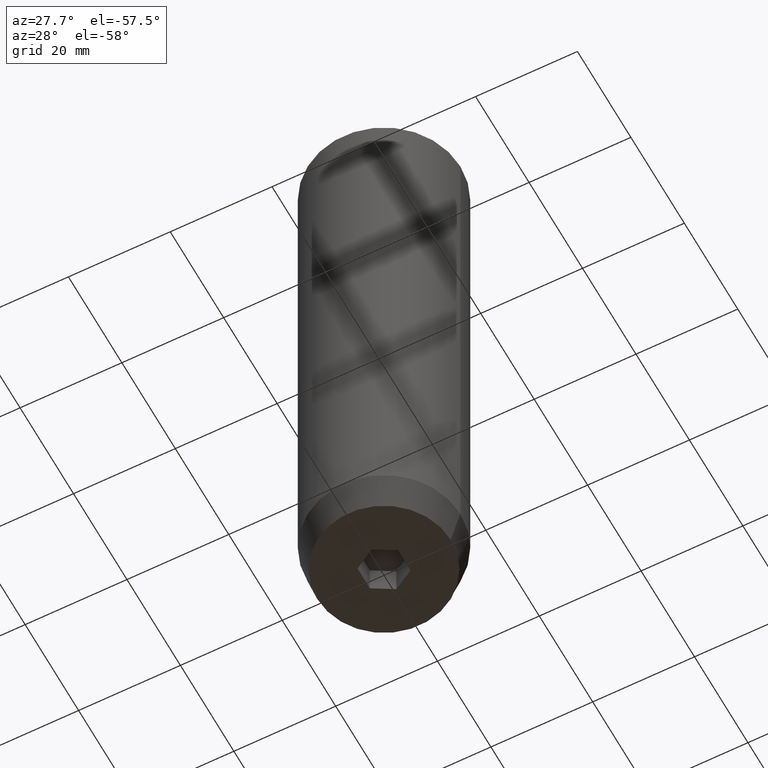
[diagram: clean part render]
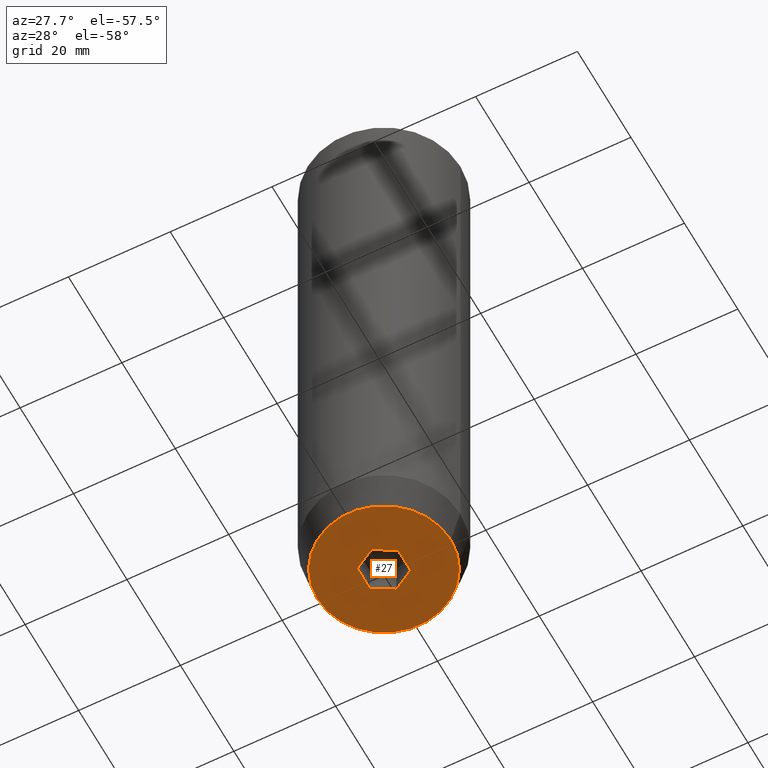
[diagram: same view with one face highlighted and labeled with its STEP entity id]
A machine part, auxiliary view. The second image highlights one B-rep face of the part: STEP entity #27.
In plain terms, the highlighted planar face has unit normal (0, 0, -1).
Its self-contained STEP definition (entity closure, byte-faithful):
#2 = DIRECTION ( 'NONE',  ( 1.000000000000000000, 0.000000000000000000, 0.000000000000000000 ) ) ;
#14 = VECTOR ( 'NONE', #278, 1000.000000000000000 ) ;
#18 = CARTESIAN_POINT ( 'NONE',  ( 0.000000000000000000, 13.12435565298213369, -120.0000000000000000 ) ) ;
#24 = CIRCLE ( 'NONE', #263, 13.12435565298213369 ) ;
#27 = ADVANCED_FACE ( 'NONE', ( #275, #130 ), #382, .T. ) ;
#33 = ORIENTED_EDGE ( 'NONE', *, *, #589, .F. ) ;
#38 = EDGE_LOOP ( 'NONE', ( #633, #33 ) ) ;
#41 = VERTEX_POINT ( 'NONE', #517 ) ;
#43 = DIRECTION ( 'NONE',  ( -0.8660254037844387076, 0.4999999999999997224, 0.000000000000000000 ) ) ;
#82 = ORIENTED_EDGE ( 'NONE', *, *, #364, .F. ) ;
#86 = EDGE_CURVE ( 'NONE', #561, #158, #431, .T. ) ;
#88 = ORIENTED_EDGE ( 'NONE', *, *, #233, .F. ) ;
#98 = CARTESIAN_POINT ( 'NONE',  ( -4.000000000000001776, -2.309401076758503368, -120.0000000000000000 ) ) ;
#104 = DIRECTION ( 'NONE',  ( 3.755786496842898071E-16, 1.000000000000000000, 0.000000000000000000 ) ) ;
#110 = EDGE_CURVE ( 'NONE', #158, #612, #294, .T. ) ;
#118 = DIRECTION ( 'NONE',  ( 1.000000000000000000, 0.000000000000000000, 0.000000000000000000 ) ) ;
#122 = DIRECTION ( 'NONE',  ( -0.8660254037844385966, -0.4999999999999998890, 0.000000000000000000 ) ) ;
#127 = CIRCLE ( 'NONE', #357, 13.12435565298213369 ) ;
#130 = FACE_OUTER_BOUND ( 'NONE', #38, .T. ) ;
#134 = VECTOR ( 'NONE', #122, 1000.000000000000227 ) ;
#158 = VERTEX_POINT ( 'NONE', #248 ) ;
#184 = DIRECTION ( 'NONE',  ( -1.000000000000000000, 0.000000000000000000, -0.000000000000000000 ) ) ;
#193 = CARTESIAN_POINT ( 'NONE',  ( -2.000000000000000000, 3.464101615137755275, -120.0000000000000000 ) ) ;
#201 = CARTESIAN_POINT ( 'NONE',  ( 4.000000000000000000, -2.309401076758503368, -120.0000000000000000 ) ) ;
#204 = CARTESIAN_POINT ( 'NONE',  ( 0.000000000000000000, 0.000000000000000000, -120.0000000000000000 ) ) ;
#232 = LINE ( 'NONE', #462, #14 ) ;
#233 = EDGE_CURVE ( 'NONE', #414, #247, #244, .T. ) ;
#244 = LINE ( 'NONE', #193, #336 ) ;
#247 = VERTEX_POINT ( 'NONE', #534 ) ;
#248 = CARTESIAN_POINT ( 'NONE',  ( 8.673617379884035472E-16, -4.618802153517004960, -120.0000000000000000 ) ) ;
#256 = VERTEX_POINT ( 'NONE', #454 ) ;
#261 = CARTESIAN_POINT ( 'NONE',  ( -4.000000000000000888, 1.502314598737159623E-15, -120.0000000000000000 ) ) ;
#263 = AXIS2_PLACEMENT_3D ( 'NONE', #204, #349, #2 ) ;
#266 = CARTESIAN_POINT ( 'NONE',  ( 0.000000000000000000, 0.000000000000000000, -120.0000000000000000 ) ) ;
#273 = VECTOR ( 'NONE', #451, 999.9999999999998863 ) ;
#275 = FACE_BOUND ( 'NONE', #433, .T. ) ;
#278 = DIRECTION ( 'NONE',  ( 0.000000000000000000, -1.000000000000000000, 0.000000000000000000 ) ) ;
#294 = LINE ( 'NONE', #529, #575 ) ;
#298 = EDGE_CURVE ( 'NONE', #612, #414, #591, .T. ) ;
#304 = LINE ( 'NONE', #450, #273 ) ;
#319 = ORIENTED_EDGE ( 'NONE', *, *, #298, .F. ) ;
#330 = CARTESIAN_POINT ( 'NONE',  ( -13.12435565298213369, 1.722120106425316888E-15, -120.0000000000000000 ) ) ;
#336 = VECTOR ( 'NONE', #391, 999.9999999999998863 ) ;
#349 = DIRECTION ( 'NONE',  ( -0.000000000000000000, -0.000000000000000000, 1.000000000000000000 ) ) ;
#357 = AXIS2_PLACEMENT_3D ( 'NONE', #266, #369, #118 ) ;
#364 = EDGE_CURVE ( 'NONE', #247, #256, #304, .T. ) ;
#369 = DIRECTION ( 'NONE',  ( -0.000000000000000000, -0.000000000000000000, 1.000000000000000000 ) ) ;
#370 = ORIENTED_EDGE ( 'NONE', *, *, #440, .F. ) ;
#382 = PLANE ( 'NONE',  #535 ) ;
#391 = DIRECTION ( 'NONE',  ( 0.8660254037844387076, 0.4999999999999999445, 0.000000000000000000 ) ) ;
#414 = VERTEX_POINT ( 'NONE', #564 ) ;
#424 = CARTESIAN_POINT ( 'NONE',  ( 1.999999999999999556, -3.464101615137754386, -120.0000000000000000 ) ) ;
#426 = ORIENTED_EDGE ( 'NONE', *, *, #110, .F. ) ;
#431 = LINE ( 'NONE', #424, #134 ) ;
#433 = EDGE_LOOP ( 'NONE', ( #88, #319, #426, #599, #370, #82 ) ) ;
#440 = EDGE_CURVE ( 'NONE', #256, #561, #232, .T. ) ;
#450 = CARTESIAN_POINT ( 'NONE',  ( 2.000000000000000000, 3.464101615137755275, -120.0000000000000000 ) ) ;
#451 = DIRECTION ( 'NONE',  ( 0.8660254037844387076, -0.4999999999999999445, 0.000000000000000000 ) ) ;
#454 = CARTESIAN_POINT ( 'NONE',  ( 4.000000000000000000, 2.309401076758504257, -120.0000000000000000 ) ) ;
#462 = CARTESIAN_POINT ( 'NONE',  ( 4.000000000000000000, 0.000000000000000000, -120.0000000000000000 ) ) ;
#472 = VERTEX_POINT ( 'NONE', #330 ) ;
#517 = CARTESIAN_POINT ( 'NONE',  ( 13.12435565298213369, 0.000000000000000000, -120.0000000000000000 ) ) ;
#523 = EDGE_CURVE ( 'NONE', #41, #472, #127, .T. ) ;
#529 = CARTESIAN_POINT ( 'NONE',  ( -1.999999999999999112, -3.464101615137755275, -120.0000000000000000 ) ) ;
#534 = CARTESIAN_POINT ( 'NONE',  ( 4.336808689942017736E-16, 4.618802153517006737, -120.0000000000000000 ) ) ;
#535 = AXIS2_PLACEMENT_3D ( 'NONE', #18, #557, #184 ) ;
#557 = DIRECTION ( 'NONE',  ( 0.000000000000000000, 0.000000000000000000, -1.000000000000000000 ) ) ;
#561 = VERTEX_POINT ( 'NONE', #201 ) ;
#564 = CARTESIAN_POINT ( 'NONE',  ( -4.000000000000000000, 2.309401076758504257, -120.0000000000000000 ) ) ;
#575 = VECTOR ( 'NONE', #43, 1000.000000000000114 ) ;
#588 = VECTOR ( 'NONE', #104, 1000.000000000000000 ) ;
#589 = EDGE_CURVE ( 'NONE', #472, #41, #24, .T. ) ;
#591 = LINE ( 'NONE', #261, #588 ) ;
#599 = ORIENTED_EDGE ( 'NONE', *, *, #86, .F. ) ;
#612 = VERTEX_POINT ( 'NONE', #98 ) ;
#633 = ORIENTED_EDGE ( 'NONE', *, *, #523, .F. ) ;